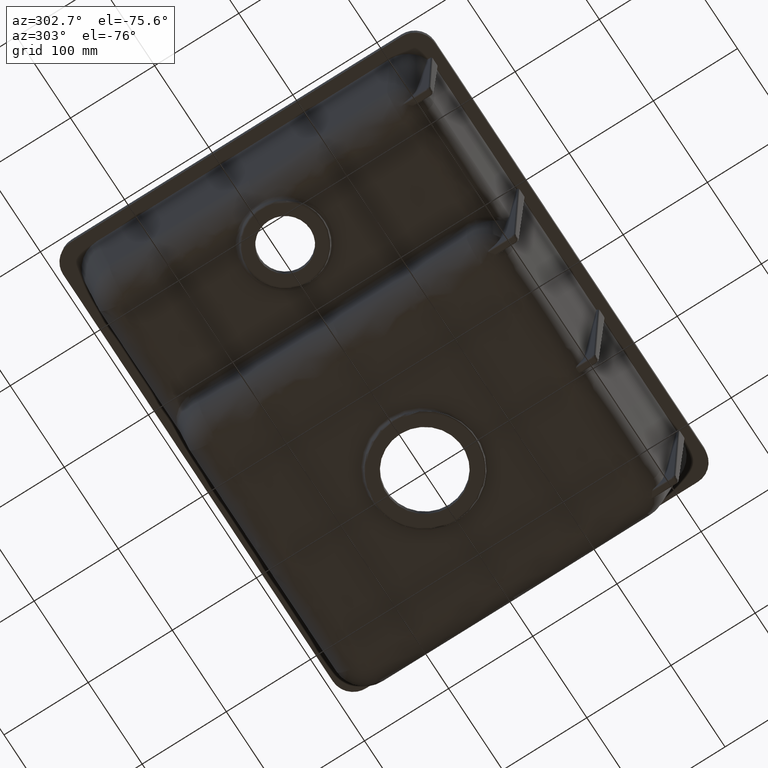
[diagram: clean part render]
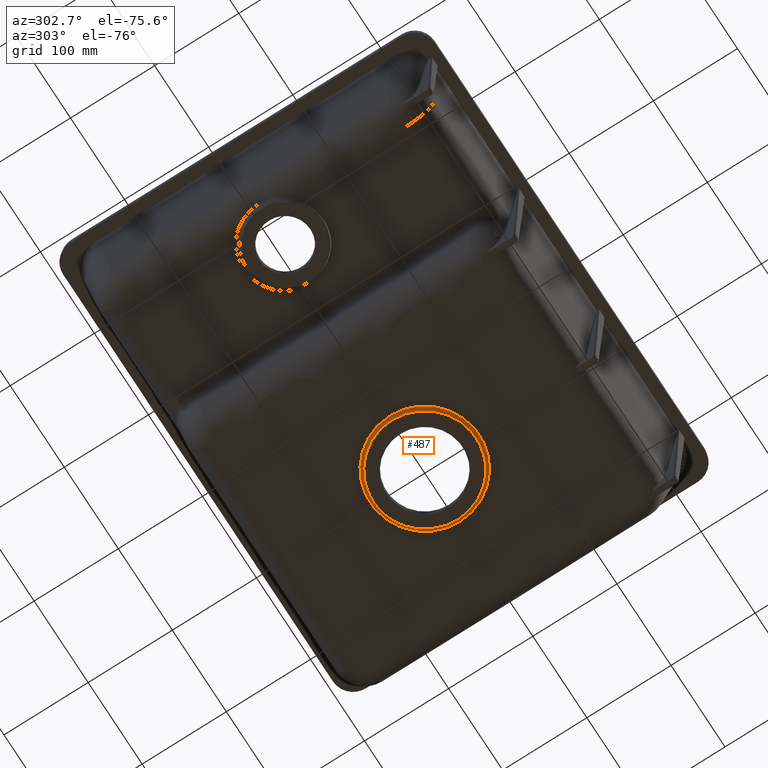
[diagram: same view with one face highlighted and labeled with its STEP entity id]
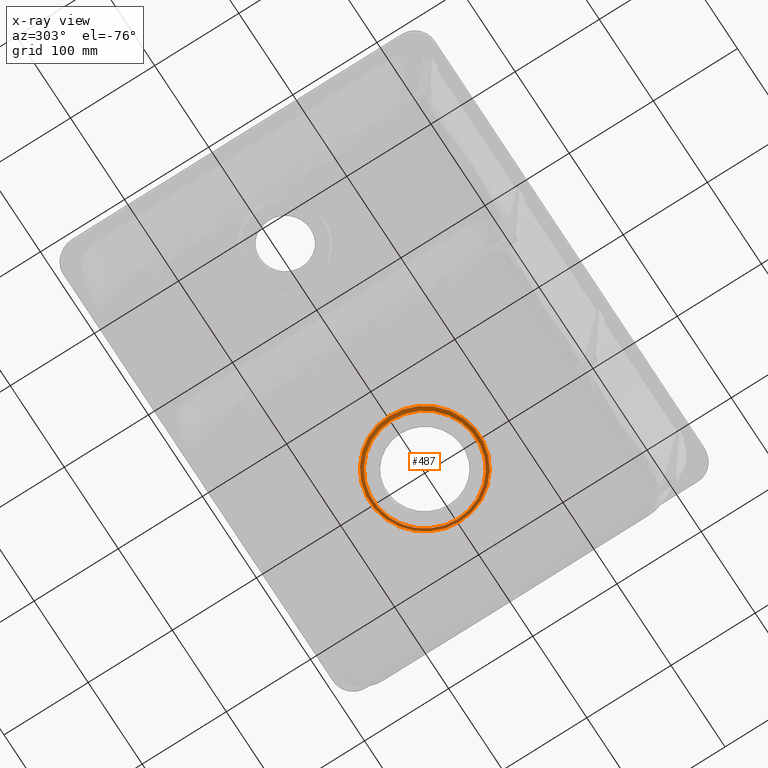
[diagram: x-ray of the same camera — body ghosted, the highlighted face saturated]
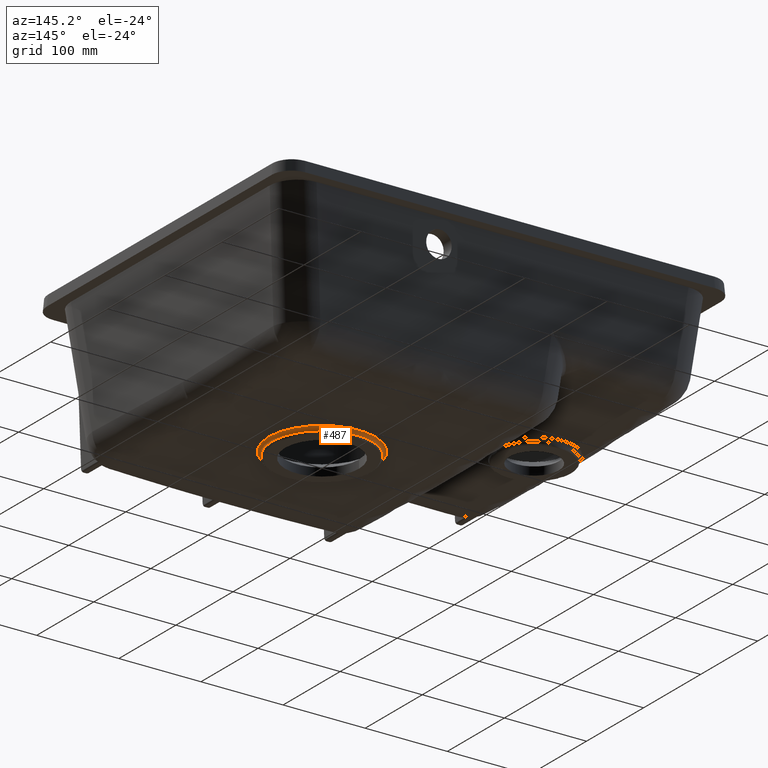
[diagram: same view with one face highlighted and labeled with its STEP entity id]
A machine part, auxiliary view. The second image highlights one B-rep face of the part: STEP entity #487.
The next image is the same camera in x-ray: the body ghosted, the highlighted face saturated — about 0% of this face is hidden behind the body in this view.
A second angle (auxiliary view) of the same face is appended — the face is thin or edge-on in the first view.
In plain terms, the highlighted toroidal blend (fillet) surface has major radius 65 mm and minor (blend) radius 4 mm.
Its self-contained STEP definition (entity closure, byte-faithful):
#63=TOROIDAL_SURFACE('',#2938,65.0000000000003,4.00000000000001);
#366=CIRCLE('',#2935,61.0000000000004);
#367=CIRCLE('',#2936,64.8255224505392);
#368=CIRCLE('',#2937,64.8255224505392);
#487=ADVANCED_FACE('',(#695,#696),#63,.F.);
#695=FACE_BOUND('',#745,.T.);
#696=FACE_BOUND('',#746,.T.);
#745=EDGE_LOOP('',(#1235));
#746=EDGE_LOOP('',(#1236,#1237));
#1235=ORIENTED_EDGE('',*,*,#2355,.F.);
#1236=ORIENTED_EDGE('',*,*,#2356,.F.);
#1237=ORIENTED_EDGE('',*,*,#2357,.T.);
#2074=VERTEX_POINT('',#4684);
#2075=VERTEX_POINT('',#4686);
#2076=VERTEX_POINT('',#4687);
#2355=EDGE_CURVE('',#2074,#2074,#366,.T.);
#2356=EDGE_CURVE('',#2075,#2076,#367,.T.);
#2357=EDGE_CURVE('',#2075,#2076,#368,.T.);
#2935=AXIS2_PLACEMENT_3D('',#4683,#3274,#3275);
#2936=AXIS2_PLACEMENT_3D('',#4685,#3276,#3277);
#2937=AXIS2_PLACEMENT_3D('',#4688,#3278,#3279);
#2938=AXIS2_PLACEMENT_3D('',#4689,#3280,#3281);
#3274=DIRECTION('',(5.77861984128664E-14,4.55009436322203E-16,-1.));
#3275=DIRECTION('',(-1.,0.,-5.77861984128664E-14));
#3276=DIRECTION('',(-5.73731917908104E-14,-4.28158147693107E-16,1.));
#3277=DIRECTION('',(1.,0.,5.73731917908105E-14));
#3278=DIRECTION('',(5.73731917908104E-14,-4.28158147693107E-16,-1.));
#3279=DIRECTION('',(1.,0.,5.73731917908105E-14));
#3280=DIRECTION('',(-5.64211701039011E-14,0.,1.));
#3281=DIRECTION('',(-1.,0.,-5.63156606693918E-14));
#4683=CARTESIAN_POINT('',(6.10622663543836E-13,0.,-197.910814457407));
#4684=CARTESIAN_POINT('',(-60.9999999999997,-2.77555756156289E-14,-197.910814457415));
#4685=CARTESIAN_POINT('',(3.33066907387547E-13,2.77555756156289E-14,-193.914621571087));
#4686=CARTESIAN_POINT('',(-64.8255224505386,0.,-193.914621571091));
#4687=CARTESIAN_POINT('',(64.8255224504824,-2.77555756156289E-14,-193.914621571086));
#4688=CARTESIAN_POINT('',(3.33066907387547E-13,-2.77555756156289E-14,-193.914621571087));
#4689=CARTESIAN_POINT('',(5.55111512312578E-13,-5.55111512312578E-14,-197.910814457415));